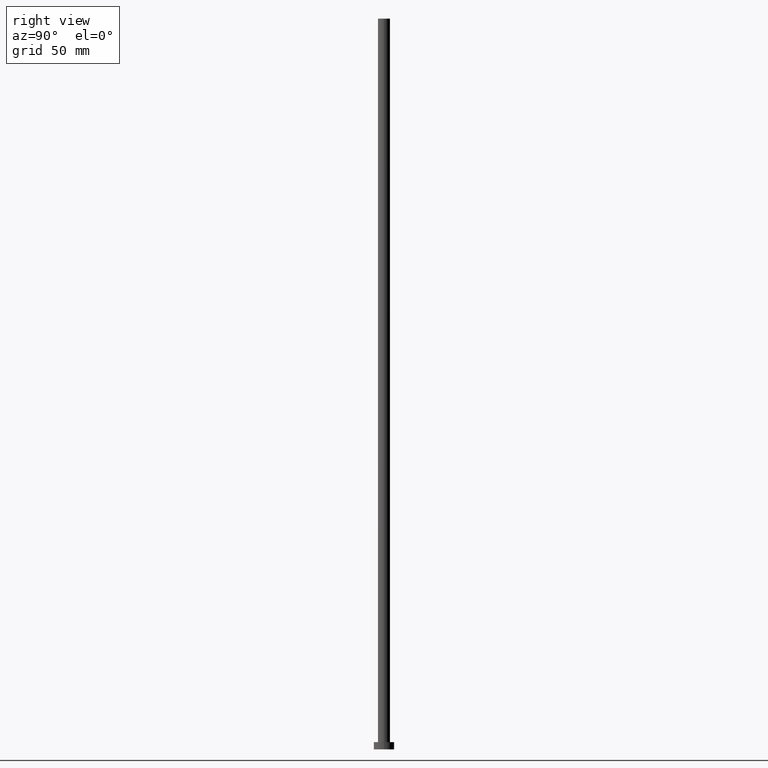
[diagram: clean part render]
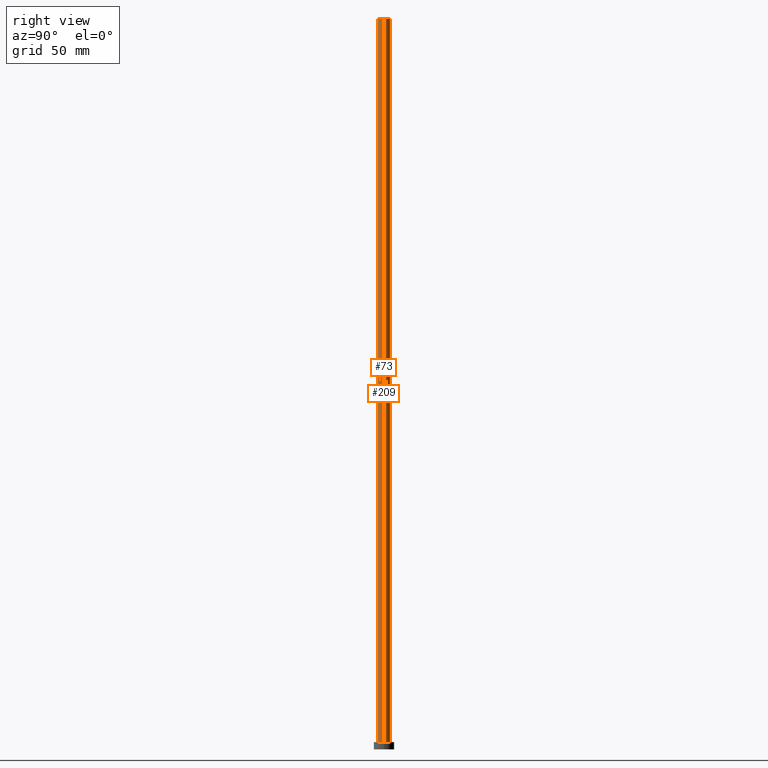
[diagram: same view with one multi-face feature highlighted, each face labeled with its STEP entity id]
A machine part, right view. The highlighted faces form ONE feature: a constant-radius fillet chain: 2 tangent blend faces with common blend radius 4.1 mm. The faces share edges in the B-rep.
Their STEP definitions:
[1] entity #209 (Cylinder):
#13 = EDGE_CURVE ( 'NONE', #50, #25, #152, .T. ) ;
#25 = VERTEX_POINT ( 'NONE', #251 ) ;
#26 = DIRECTION ( 'NONE',  ( 1.000000000000000000, 0.000000000000000000, 0.000000000000000000 ) ) ;
#29 = CARTESIAN_POINT ( 'NONE',  ( -4.099999999999999645, 0.000000000000000000, 500.0000000000000000 ) ) ;
#34 = DIRECTION ( 'NONE',  ( 0.000000000000000000, 0.000000000000000000, 1.000000000000000000 ) ) ;
#42 = DIRECTION ( 'NONE',  ( -0.000000000000000000, -0.000000000000000000, -1.000000000000000000 ) ) ;
#48 = DIRECTION ( 'NONE',  ( 0.000000000000000000, 0.000000000000000000, 1.000000000000000000 ) ) ;
#50 = VERTEX_POINT ( 'NONE', #172 ) ;
#51 = VECTOR ( 'NONE', #219, 1000.000000000000000 ) ;
#70 = ORIENTED_EDGE ( 'NONE', *, *, #169, .T. ) ;
#84 = AXIS2_PLACEMENT_3D ( 'NONE', #131, #48, #26 ) ;
#106 = ORIENTED_EDGE ( 'NONE', *, *, #126, .F. ) ;
#114 = DIRECTION ( 'NONE',  ( 1.000000000000000000, 0.000000000000000000, 0.000000000000000000 ) ) ;
#115 = CARTESIAN_POINT ( 'NONE',  ( 4.099999999999999645, 5.021051876504147385E-16, 500.0000000000000000 ) ) ;
#118 = LINE ( 'NONE', #217, #165 ) ;
#126 = EDGE_CURVE ( 'NONE', #150, #168, #194, .T. ) ;
#129 = LINE ( 'NONE', #115, #51 ) ;
#131 = CARTESIAN_POINT ( 'NONE',  ( 0.000000000000000000, 0.000000000000000000, 500.0000000000000000 ) ) ;
#137 = DIRECTION ( 'NONE',  ( -0.000000000000000000, -0.000000000000000000, -1.000000000000000000 ) ) ;
#141 = CARTESIAN_POINT ( 'NONE',  ( 0.000000000000000000, 0.000000000000000000, 500.0000000000000000 ) ) ;
#142 = AXIS2_PLACEMENT_3D ( 'NONE', #141, #42, #222 ) ;
#146 = ORIENTED_EDGE ( 'NONE', *, *, #13, .T. ) ;
#150 = VERTEX_POINT ( 'NONE', #203 ) ;
#152 = CIRCLE ( 'NONE', #161, 4.099999999999999645 ) ;
#161 = AXIS2_PLACEMENT_3D ( 'NONE', #192, #34, #114 ) ;
#164 = ORIENTED_EDGE ( 'NONE', *, *, #206, .F. ) ;
#165 = VECTOR ( 'NONE', #137, 1000.000000000000000 ) ;
#168 = VERTEX_POINT ( 'NONE', #29 ) ;
#169 = EDGE_CURVE ( 'NONE', #150, #50, #129, .T. ) ;
#172 = CARTESIAN_POINT ( 'NONE',  ( 4.099999999999999645, 5.021051876504147385E-16, 5.000000000000000000 ) ) ;
#192 = CARTESIAN_POINT ( 'NONE',  ( 0.000000000000000000, 0.000000000000000000, 5.000000000000000000 ) ) ;
#194 = CIRCLE ( 'NONE', #84, 4.099999999999999645 ) ;
#196 = FACE_OUTER_BOUND ( 'NONE', #223, .T. ) ;
#203 = CARTESIAN_POINT ( 'NONE',  ( 4.099999999999999645, 5.021051876504147385E-16, 500.0000000000000000 ) ) ;
#206 = EDGE_CURVE ( 'NONE', #168, #25, #118, .T. ) ;
#209 = ADVANCED_FACE ( 'NONE', ( #196 ), #233, .T. ) ;
#217 = CARTESIAN_POINT ( 'NONE',  ( -4.099999999999999645, 0.000000000000000000, 500.0000000000000000 ) ) ;
#219 = DIRECTION ( 'NONE',  ( -0.000000000000000000, -0.000000000000000000, -1.000000000000000000 ) ) ;
#222 = DIRECTION ( 'NONE',  ( -1.000000000000000000, 0.000000000000000000, 0.000000000000000000 ) ) ;
#223 = EDGE_LOOP ( 'NONE', ( #106, #70, #146, #164 ) ) ;
#233 = CYLINDRICAL_SURFACE ( 'NONE', #142, 4.099999999999999645 ) ;
#251 = CARTESIAN_POINT ( 'NONE',  ( -4.099999999999999645, 0.000000000000000000, 5.000000000000000000 ) ) ;
[2] entity #73 (Cylinder):
#4 = EDGE_LOOP ( 'NONE', ( #27, #200, #31, #240 ) ) ;
#10 = DIRECTION ( 'NONE',  ( -1.000000000000000000, 0.000000000000000000, 0.000000000000000000 ) ) ;
#23 = AXIS2_PLACEMENT_3D ( 'NONE', #47, #53, #88 ) ;
#25 = VERTEX_POINT ( 'NONE', #251 ) ;
#27 = ORIENTED_EDGE ( 'NONE', *, *, #169, .F. ) ;
#29 = CARTESIAN_POINT ( 'NONE',  ( -4.099999999999999645, 0.000000000000000000, 500.0000000000000000 ) ) ;
#31 = ORIENTED_EDGE ( 'NONE', *, *, #206, .T. ) ;
#47 = CARTESIAN_POINT ( 'NONE',  ( 0.000000000000000000, 0.000000000000000000, 5.000000000000000000 ) ) ;
#50 = VERTEX_POINT ( 'NONE', #172 ) ;
#51 = VECTOR ( 'NONE', #219, 1000.000000000000000 ) ;
#53 = DIRECTION ( 'NONE',  ( 0.000000000000000000, 0.000000000000000000, 1.000000000000000000 ) ) ;
#62 = CIRCLE ( 'NONE', #23, 4.099999999999999645 ) ;
#63 = DIRECTION ( 'NONE',  ( 0.000000000000000000, 0.000000000000000000, 1.000000000000000000 ) ) ;
#73 = ADVANCED_FACE ( 'NONE', ( #92 ), #243, .T. ) ;
#74 = AXIS2_PLACEMENT_3D ( 'NONE', #174, #63, #252 ) ;
#88 = DIRECTION ( 'NONE',  ( 1.000000000000000000, 0.000000000000000000, 0.000000000000000000 ) ) ;
#92 = FACE_OUTER_BOUND ( 'NONE', #4, .T. ) ;
#93 = EDGE_CURVE ( 'NONE', #25, #50, #62, .T. ) ;
#109 = CIRCLE ( 'NONE', #74, 4.099999999999999645 ) ;
#115 = CARTESIAN_POINT ( 'NONE',  ( 4.099999999999999645, 5.021051876504147385E-16, 500.0000000000000000 ) ) ;
#118 = LINE ( 'NONE', #217, #165 ) ;
#129 = LINE ( 'NONE', #115, #51 ) ;
#132 = CARTESIAN_POINT ( 'NONE',  ( 0.000000000000000000, 0.000000000000000000, 500.0000000000000000 ) ) ;
#135 = AXIS2_PLACEMENT_3D ( 'NONE', #132, #201, #10 ) ;
#137 = DIRECTION ( 'NONE',  ( -0.000000000000000000, -0.000000000000000000, -1.000000000000000000 ) ) ;
#150 = VERTEX_POINT ( 'NONE', #203 ) ;
#165 = VECTOR ( 'NONE', #137, 1000.000000000000000 ) ;
#168 = VERTEX_POINT ( 'NONE', #29 ) ;
#169 = EDGE_CURVE ( 'NONE', #150, #50, #129, .T. ) ;
#172 = CARTESIAN_POINT ( 'NONE',  ( 4.099999999999999645, 5.021051876504147385E-16, 5.000000000000000000 ) ) ;
#174 = CARTESIAN_POINT ( 'NONE',  ( 0.000000000000000000, 0.000000000000000000, 500.0000000000000000 ) ) ;
#200 = ORIENTED_EDGE ( 'NONE', *, *, #247, .F. ) ;
#201 = DIRECTION ( 'NONE',  ( -0.000000000000000000, -0.000000000000000000, -1.000000000000000000 ) ) ;
#203 = CARTESIAN_POINT ( 'NONE',  ( 4.099999999999999645, 5.021051876504147385E-16, 500.0000000000000000 ) ) ;
#206 = EDGE_CURVE ( 'NONE', #168, #25, #118, .T. ) ;
#217 = CARTESIAN_POINT ( 'NONE',  ( -4.099999999999999645, 0.000000000000000000, 500.0000000000000000 ) ) ;
#219 = DIRECTION ( 'NONE',  ( -0.000000000000000000, -0.000000000000000000, -1.000000000000000000 ) ) ;
#240 = ORIENTED_EDGE ( 'NONE', *, *, #93, .T. ) ;
#243 = CYLINDRICAL_SURFACE ( 'NONE', #135, 4.099999999999999645 ) ;
#247 = EDGE_CURVE ( 'NONE', #168, #150, #109, .T. ) ;
#251 = CARTESIAN_POINT ( 'NONE',  ( -4.099999999999999645, 0.000000000000000000, 5.000000000000000000 ) ) ;
#252 = DIRECTION ( 'NONE',  ( 1.000000000000000000, 0.000000000000000000, 0.000000000000000000 ) ) ;